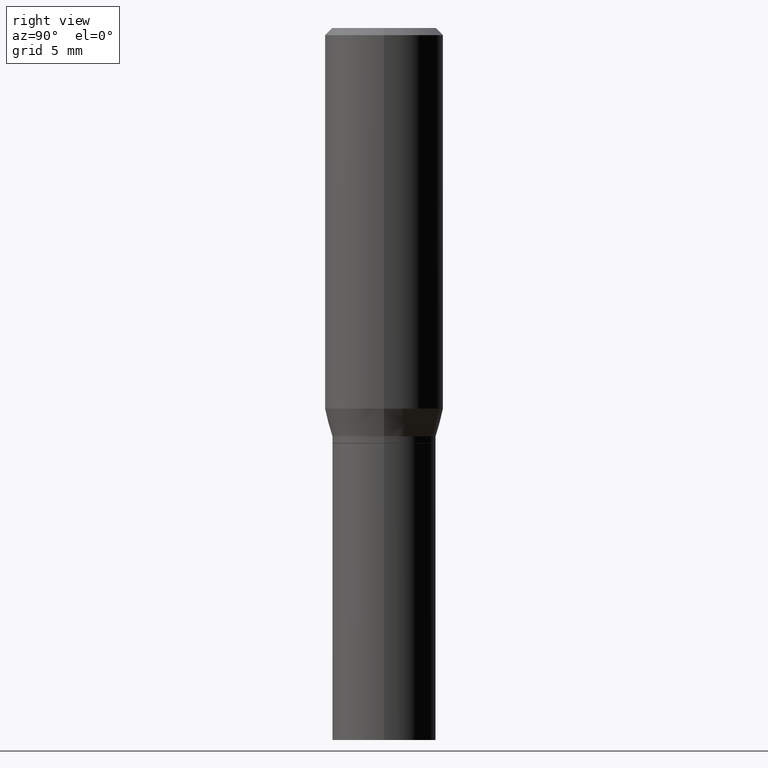
[diagram: clean part render]
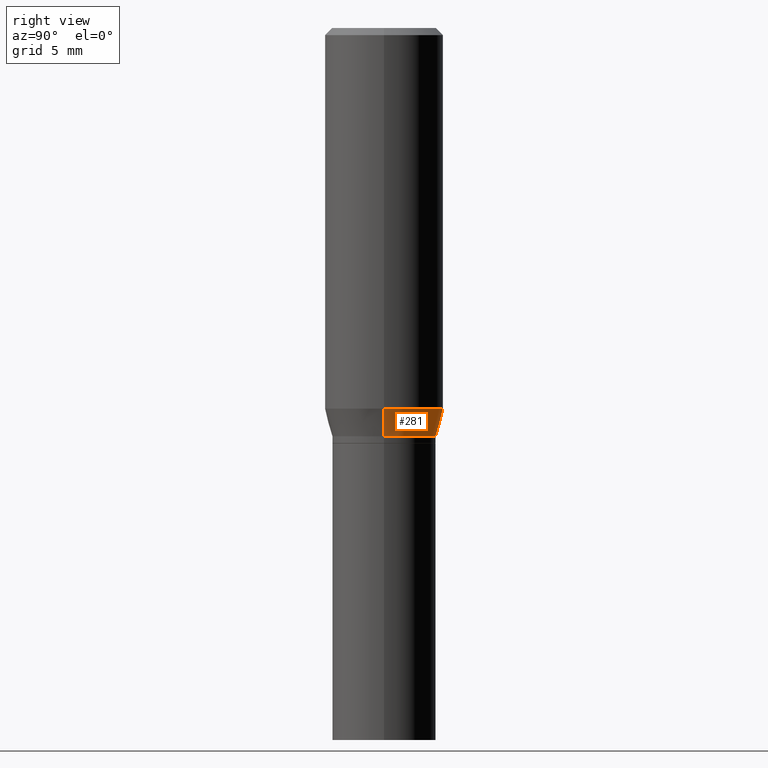
[diagram: same view with one face highlighted and labeled with its STEP entity id]
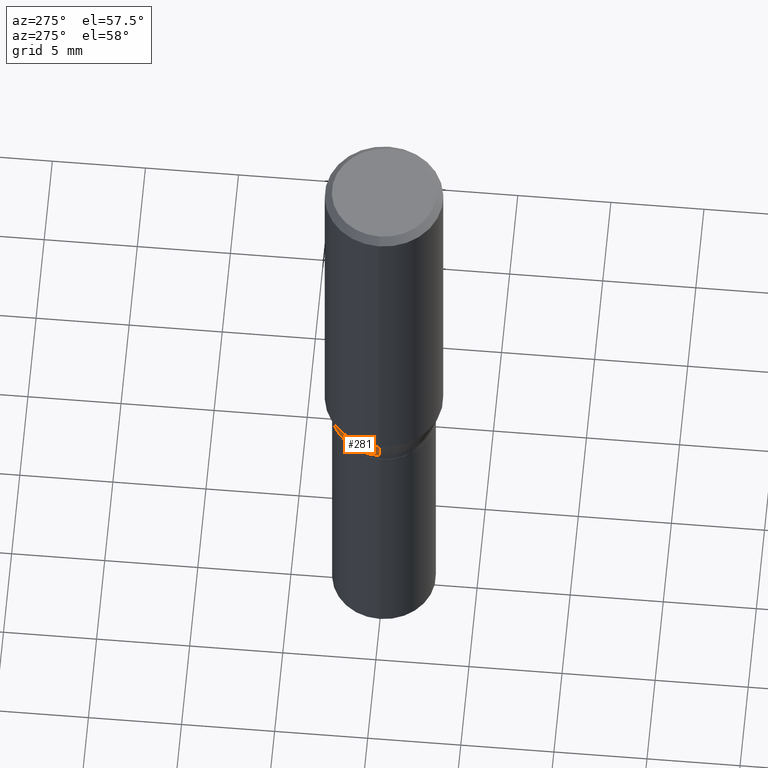
[diagram: same view with one face highlighted and labeled with its STEP entity id]
A machine part, right view. The second image highlights one B-rep face of the part: STEP entity #281.
A second angle (auxiliary view) of the same face is appended — the face is thin or edge-on in the first view.
In plain terms, the highlighted conical surface has half-angle 15 deg.
Its self-contained STEP definition (entity closure, byte-faithful):
#2 = CARTESIAN_POINT ( 'NONE',  ( -0.1094000000000000389, -2.225340198483555672E-15, -0.8600000000000000977 ) ) ;
#18 = ORIENTED_EDGE ( 'NONE', *, *, #113, .T. ) ;
#37 = CARTESIAN_POINT ( 'NONE',  ( 1.960727997524298183E-29, -2.799399933701343752E-15, -0.8017800074019261203 ) ) ;
#63 = AXIS2_PLACEMENT_3D ( 'NONE', #138, #428, #101 ) ;
#70 = AXIS2_PLACEMENT_3D ( 'NONE', #37, #168, #283 ) ;
#77 = CONICAL_SURFACE ( 'NONE', #63, 0.1094000000000000389, 0.2617993877991507401 ) ;
#83 = VERTEX_POINT ( 'NONE', #379 ) ;
#90 = ORIENTED_EDGE ( 'NONE', *, *, #238, .T. ) ;
#101 = DIRECTION ( 'NONE',  ( 1.000000000000000000, -6.982962677686266711E-15, 0.000000000000000000 ) ) ;
#103 = DIRECTION ( 'NONE',  ( 1.000000000000000000, -6.982962677686266711E-15, 0.000000000000000000 ) ) ;
#113 = EDGE_CURVE ( 'NONE', #83, #320, #386, .T. ) ;
#129 = VECTOR ( 'NONE', #324, 39.37007874015748854 ) ;
#138 = CARTESIAN_POINT ( 'NONE',  ( 2.103103173319217765E-29, -3.002673951405105651E-15, -0.8600000000000000977 ) ) ;
#140 = ORIENTED_EDGE ( 'NONE', *, *, #229, .F. ) ;
#143 = AXIS2_PLACEMENT_3D ( 'NONE', #210, #289, #103 ) ;
#151 = VERTEX_POINT ( 'NONE', #398 ) ;
#156 = ORIENTED_EDGE ( 'NONE', *, *, #204, .F. ) ;
#168 = DIRECTION ( 'NONE',  ( -2.445468806185136597E-29, 3.491481338843145583E-15, 1.000000000000000000 ) ) ;
#204 = EDGE_CURVE ( 'NONE', #83, #400, #282, .T. ) ;
#209 = VECTOR ( 'NONE', #285, 39.37007874015748854 ) ;
#210 = CARTESIAN_POINT ( 'NONE',  ( 2.103103173319217765E-29, -3.002673951405105651E-15, -0.8600000000000000977 ) ) ;
#229 = EDGE_CURVE ( 'NONE', #400, #151, #240, .T. ) ;
#238 = EDGE_CURVE ( 'NONE', #320, #151, #323, .T. ) ;
#240 = CIRCLE ( 'NONE', #70, 0.1250000000000000000 ) ;
#256 = CARTESIAN_POINT ( 'NONE',  ( -0.1094000000000000389, -2.068280856242386899E-15, -0.8600000000000000977 ) ) ;
#281 = ADVANCED_FACE ( 'NONE', ( #463 ), #77, .T. ) ;
#282 = LINE ( 'NONE', #389, #209 ) ;
#283 = DIRECTION ( 'NONE',  ( 1.000000000000000000, -6.982962677686266711E-15, 0.000000000000000000 ) ) ;
#285 = DIRECTION ( 'NONE',  ( 0.2588190451025219607, 1.565188264969616840E-15, 0.9659258262890678681 ) ) ;
#289 = DIRECTION ( 'NONE',  ( -2.445468806185136597E-29, 3.491481338843145583E-15, 1.000000000000000000 ) ) ;
#320 = VERTEX_POINT ( 'NONE', #256 ) ;
#323 = LINE ( 'NONE', #2, #129 ) ;
#324 = DIRECTION ( 'NONE',  ( -0.2588190451025219607, 5.211531920934553408E-15, 0.9659258262890678681 ) ) ;
#379 = CARTESIAN_POINT ( 'NONE',  ( 0.1094000000000000389, -3.766610068343983617E-15, -0.8600000000000000977 ) ) ;
#386 = CIRCLE ( 'NONE', #143, 0.1094000000000000389 ) ;
#389 = CARTESIAN_POINT ( 'NONE',  ( 0.1094000000000000389, -3.766610068343983617E-15, -0.8600000000000000977 ) ) ;
#398 = CARTESIAN_POINT ( 'NONE',  ( -0.1250000000000000000, -1.911221514001218520E-15, -0.8017800074019261203 ) ) ;
#400 = VERTEX_POINT ( 'NONE', #445 ) ;
#428 = DIRECTION ( 'NONE',  ( -2.445468806185136597E-29, 3.491481338843145583E-15, 1.000000000000000000 ) ) ;
#445 = CARTESIAN_POINT ( 'NONE',  ( 0.1250000000000000000, -3.672270268412127091E-15, -0.8017800074019261203 ) ) ;
#463 = FACE_OUTER_BOUND ( 'NONE', #466, .T. ) ;
#466 = EDGE_LOOP ( 'NONE', ( #18, #90, #140, #156 ) ) ;